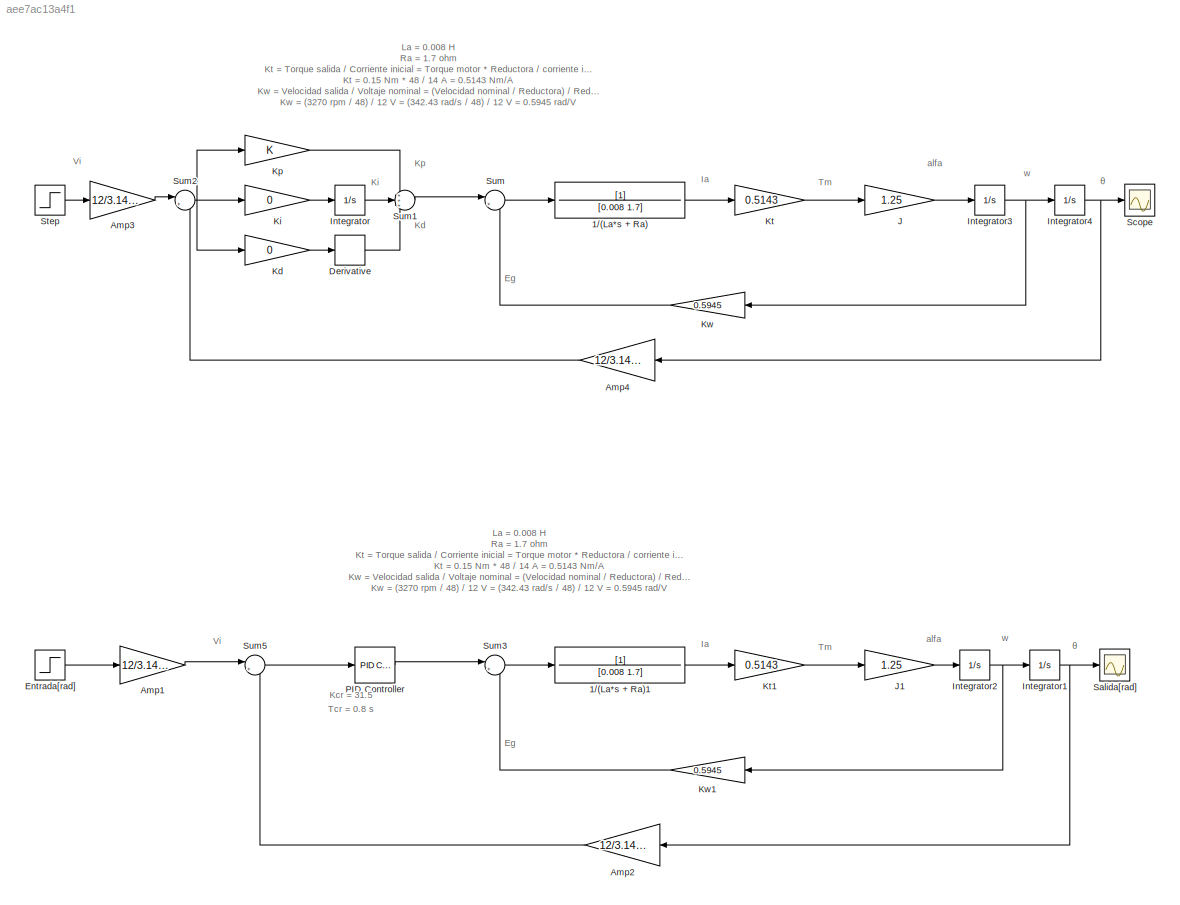
MODEL slx_aee7ac13a4f1
KIND model
CONFIG AbsTol = auto
CONFIG EnableMultiTasking = off
CONFIG FixedStep = auto
CONFIG MaxStep = auto
CONFIG MinStep = auto
CONFIG RelTol = 1e-3
CONFIG SampleTimeConstraint = Unconstrained
CONFIG SolverName = ode15s
CONFIG StartTime = 0.0
CONFIG StopTime = 10
BLOCK [TransferFcn] 1//(La*s + Ra)
  Denominator = [0.008 1.7]
BLOCK [TransferFcn] 1//(La*s + Ra)1
  Denominator = [0.008 1.7]
BLOCK [Gain] Amp1
  Gain = 12/3.1415
BLOCK [Gain] Amp2
  Gain = 12/3.1415
BLOCK [Gain] Amp3
  Gain = 12/3.1415
BLOCK [Gain] Amp4
  Gain = 12/3.1415
BLOCK [Derivative] Derivative
BLOCK [Step] Entrada[rad]
  After = 12
  SampleTime = 0
  Time = 0
BLOCK [Integrator] Integrator
  Ports = [1, 1]
BLOCK [Integrator] Integrator1
  Ports = [1, 1]
BLOCK [Integrator] Integrator2
  Ports = [1, 1]
BLOCK [Integrator] Integrator3
  Ports = [1, 1]
BLOCK [Integrator] Integrator4
  Ports = [1, 1]
BLOCK [Gain] J
  Gain = 1.25
BLOCK [Gain] J1
  Gain = 1.25
BLOCK [Gain] Kd
  Gain = 0
BLOCK [Gain] Ki
  Gain = 0
BLOCK [Gain] Kp
BLOCK [Gain] Kt
  Gain = 0.5143
BLOCK [Gain] Kt1
  Gain = 0.5143
BLOCK [Gain] Kw
  Gain = 0.5945
BLOCK [Gain] Kw1
  Gain = 0.5945
BLOCK [Reference] PID Controller  REF=slpidlib/PID Controller
  Ports = [1, 1]
  SourceBlock = slpidlib/PID Controller
  SourceProductBaseCode = SL
  SourceType = PID 1dof
BLOCK [Scope] Salida[rad]
  Floating = off
  NumInputPorts = 1
  Ports = [1]
  ScopeSpecificationString = Simulink.scopes.TimeScopeBlockCfg('CurrentConfiguration', extmgr.ConfigurationSet(extmgr.Configuration('Core','General UI',true),extmgr.Configuration('Core','Source UI',true),extmgr.Configuration('Sources','WiredSimulink',true,'DataLoggingVariableName','ScopeData1'),extmgr.Configuration('Visuals','Time Domain',true,'SerializedDisplays',{struct('MinYLimReal','-2.99629','MaxYLimReal','26.96665','YLa...<+1436ch>
BLOCK [Scope] Scope
  Floating = off
  NumInputPorts = 1
  Ports = [1]
  ScopeSpecificationString = Simulink.scopes.TimeScopeBlockCfg('CurrentConfiguration', extmgr.ConfigurationSet(extmgr.Configuration('Core','General UI',true),extmgr.Configuration('Core','Source UI',true),extmgr.Configuration('Sources','WiredSimulink',true),extmgr.Configuration('Visuals','Time Domain',true,'SerializedDisplays',{struct('MinYLimReal','-0.0001','MaxYLimReal','0.00094','YLabelReal','','MinYLimMag','0.00000','MaxYL...<+1348ch>
BLOCK [Step] Step
  SampleTime = 0
  Time = 0
BLOCK [Sum] Sum
  Inputs = |+-
  Ports = [2, 1]
BLOCK [Sum] Sum1
  Inputs = +++
  Ports = [3, 1]
BLOCK [Sum] Sum2
  Inputs = |+-
  Ports = [2, 1]
BLOCK [Sum] Sum3
  Inputs = |+-
  Ports = [2, 1]
BLOCK [Sum] Sum5
  Inputs = |+-
  Ports = [2, 1]
ANNOTATION (root): La = 0.008 H Ra = 1.7 ohm Kt = Torque salida / Corriente inicial = Torque motor * Reductora / corriente inicial Kt = 0.15 Nm * 48 / 14 A = 0.5143 Nm/A Kw = Velocidad salida / Voltaje nominal = (Velocidad nominal / Reductora) / Reductora Kw = (3270 rpm / 48) / 12 V = (342.43 rad/s / 48) / 12 V = 0.5945 rad/V J = 0.0025 Nms^2
ANNOTATION (root): Eg
ANNOTATION (root): Ia
ANNOTATION (root): Kcr = 31.5
ANNOTATION (root): Kd
ANNOTATION (root): Ki
ANNOTATION (root): Kp
ANNOTATION (root): Tcr = 0.8 s
ANNOTATION (root): Tm
ANNOTATION (root): Vi
ANNOTATION (root): alfa
ANNOTATION (root): w
ANNOTATION (root): θ
LINE 1//(La*s + Ra)1:1 -> Kt1:1
LINE 1//(La*s + Ra):1 -> Kt:1
LINE Amp1:1 -> Sum5:1
LINE Amp2:1 -> Sum5:2
LINE Amp3:1 -> Sum2:1
LINE Amp4:1 -> Sum2:2
LINE Derivative:1 -> Sum1:3
LINE Entrada[rad]:1 -> Amp1:1
NET Integrator1:1 -> Amp2:1, Salida[rad]:1
NET Integrator2:1 -> Integrator1:1, Kw1:1
NET Integrator3:1 -> Integrator4:1, Kw:1
NET Integrator4:1 -> Amp4:1, Scope:1
LINE Integrator:1 -> Sum1:2
LINE J1:1 -> Integrator2:1
LINE J:1 -> Integrator3:1
LINE Kd:1 -> Derivative:1
LINE Ki:1 -> Integrator:1
LINE Kp:1 -> Sum1:1
LINE Kt1:1 -> J1:1
LINE Kt:1 -> J:1
LINE Kw1:1 -> Sum3:2
LINE Kw:1 -> Sum:2
LINE PID Controller:1 -> Sum3:1
LINE Step:1 -> Amp3:1
LINE Sum1:1 -> Sum:1
NET Sum2:1 -> Kd:1, Ki:1, Kp:1
LINE Sum3:1 -> 1//(La*s + Ra)1:1
LINE Sum5:1 -> PID Controller:1
LINE Sum:1 -> 1//(La*s + Ra):1
note: NET lines group one-source signal fan-out (src -> all destinations, sorted); 1:1 wires keep LINE
